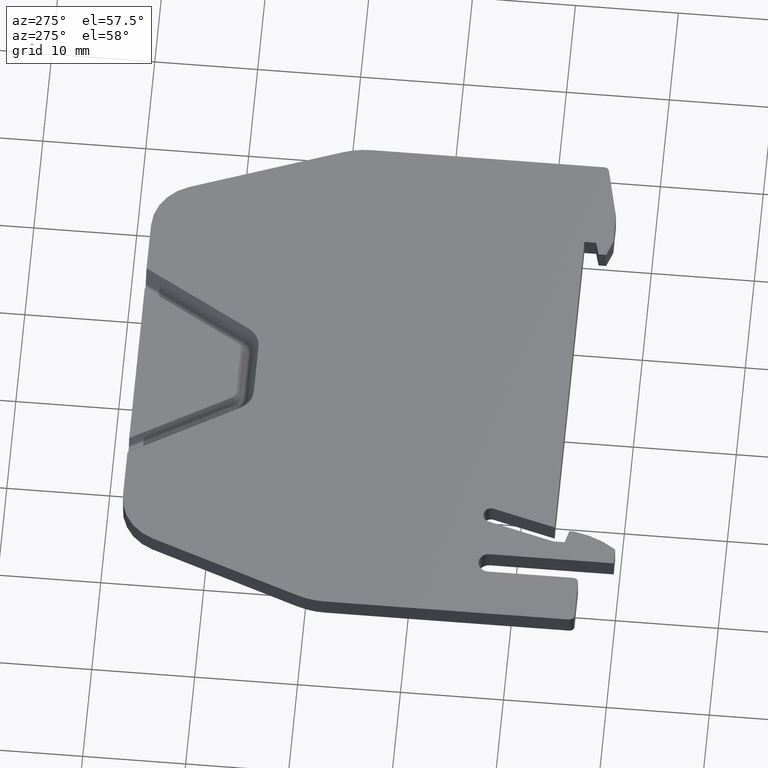
[diagram: clean part render]
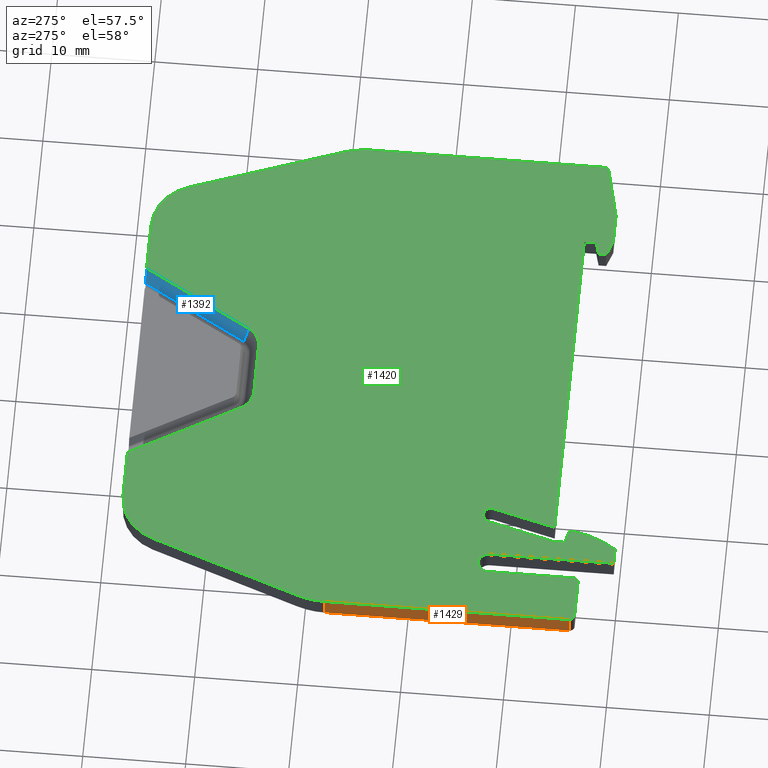
[diagram: same view with three faces highlighted in distinct colors, each labeled with its STEP entity id]
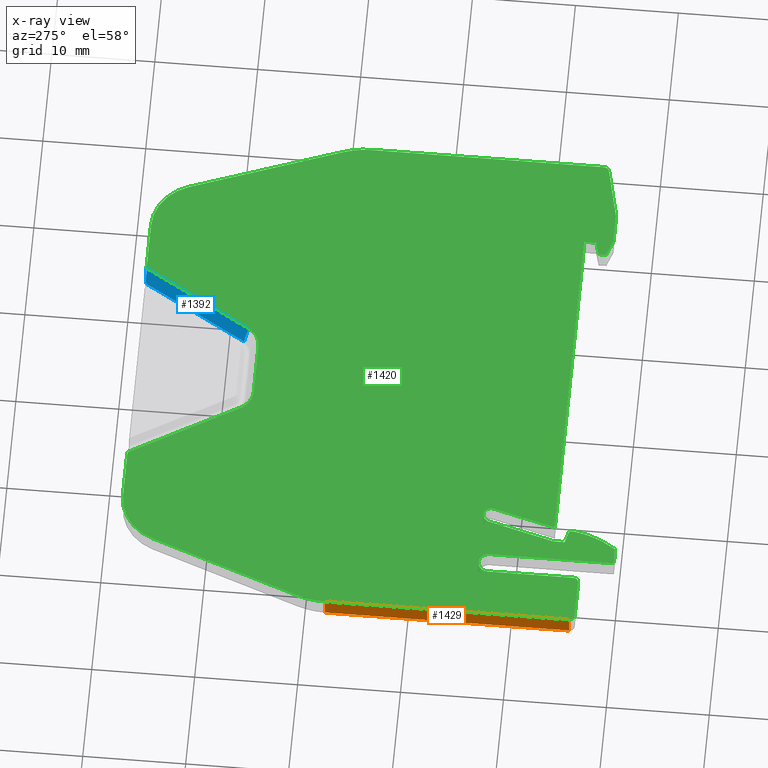
[diagram: x-ray of the same camera — body ghosted, the three highlighted faces saturated]
A machine part, auxiliary view with three faces highlighted in distinct colors.
The next image is the same camera in x-ray (body ghosted, the three faces saturated) — at least one of them is partly hidden behind the body in this view.
Their STEP definitions:

[orange] entity #1429 — the highlighted planar face has unit normal (1, -0, 0).
#15 = VECTOR ( 'NONE', #891, 1000.000000000000000 ) ;
#75 = VECTOR ( 'NONE', #1092, 1000.000000000000000 ) ;
#117 = VECTOR ( 'NONE', #1098, 1000.000000000000000 ) ;
#195 = VECTOR ( 'NONE', #1614, 1000.000000000000000 ) ;
#201 = AXIS2_PLACEMENT_3D ( 'NONE', #1695, #1685, #1679 ) ;
#343 = EDGE_LOOP ( 'NONE', ( #667, #685, #677, #631 ) ) ;
#391 = VERTEX_POINT ( 'NONE', #777 ) ;
#395 = VERTEX_POINT ( 'NONE', #784 ) ;
#396 = VERTEX_POINT ( 'NONE', #775 ) ;
#422 = VERTEX_POINT ( 'NONE', #863 ) ;
#631 = ORIENTED_EDGE ( 'NONE', *, *, #1248, .F. ) ;
#667 = ORIENTED_EDGE ( 'NONE', *, *, #1301, .F. ) ;
#677 = ORIENTED_EDGE ( 'NONE', *, *, #1416, .T. ) ;
#685 = ORIENTED_EDGE ( 'NONE', *, *, #1299, .F. ) ;
#775 = CARTESIAN_POINT ( 'NONE',  ( 1747.800570147140400, 718.0379047496979900, 0.0000000000000000000 ) ) ;
#777 = CARTESIAN_POINT ( 'NONE',  ( 1747.800570147140400, 694.3109218058740500, 0.0000000000000000000 ) ) ;
#784 = CARTESIAN_POINT ( 'NONE',  ( 1747.800570147140400, 718.0379047496981000, 2.000000000000000000 ) ) ;
#863 = CARTESIAN_POINT ( 'NONE',  ( 1747.800570147140200, 694.3109218058740500, 2.000000000000000000 ) ) ;
#891 = DIRECTION ( 'NONE',  ( 0.0000000000000000000, -0.0000000000000000000, -1.000000000000000000 ) ) ;
#893 = LINE ( 'NONE', #921, #15 ) ;
#921 = CARTESIAN_POINT ( 'NONE',  ( 1747.800570147140200, 694.3109218058740500, 2.000000000000000000 ) ) ;
#1056 = LINE ( 'NONE', #1079, #75 ) ;
#1078 = LINE ( 'NONE', #1094, #117 ) ;
#1079 = CARTESIAN_POINT ( 'NONE',  ( 1747.800570147140200, 694.3109218058740500, 2.000000000000000000 ) ) ;
#1092 = DIRECTION ( 'NONE',  ( -9.358316034143051000E-015, -1.000000000000000000, -0.0000000000000000000 ) ) ;
#1094 = CARTESIAN_POINT ( 'NONE',  ( 1747.800570147140400, 718.0379047496979900, 2.000000000000000000 ) ) ;
#1098 = DIRECTION ( 'NONE',  ( -0.0000000000000000000, 0.0000000000000000000, 1.000000000000000000 ) ) ;
#1248 = EDGE_CURVE ( 'NONE', #422, #391, #893, .T. ) ;
#1299 = EDGE_CURVE ( 'NONE', #396, #395, #1078, .T. ) ;
#1301 = EDGE_CURVE ( 'NONE', #395, #422, #1056, .T. ) ;
#1416 = EDGE_CURVE ( 'NONE', #396, #391, #1649, .T. ) ;
#1429 = ADVANCED_FACE ( 'NONE', ( #1674 ), #1694, .F. ) ;
#1614 = DIRECTION ( 'NONE',  ( 0.0000000000000000000, -1.000000000000000000, -0.0000000000000000000 ) ) ;
#1642 = CARTESIAN_POINT ( 'NONE',  ( 1747.800570147140400, 695.4315348762220300, 0.0000000000000000000 ) ) ;
#1649 = LINE ( 'NONE', #1642, #195 ) ;
#1674 = FACE_OUTER_BOUND ( 'NONE', #343, .T. ) ;
#1679 = DIRECTION ( 'NONE',  ( 9.358316034143051000E-015, 1.000000000000000000, 0.0000000000000000000 ) ) ;
#1685 = DIRECTION ( 'NONE',  ( 1.000000000000000000, -9.358316034143051000E-015, 0.0000000000000000000 ) ) ;
#1694 = PLANE ( 'NONE',  #201 ) ;
#1695 = CARTESIAN_POINT ( 'NONE',  ( 1747.800570147140200, 694.3109218058740500, 2.000000000000000000 ) ) ;

[blue] entity #1392 — the highlighted planar face has unit normal (-0.75, 0.433, 0.5).
#9 = VECTOR ( 'NONE', #856, 1000.000000000000100 ) ;
#79 = VECTOR ( 'NONE', #1142, 1000.000000000000000 ) ;
#168 = VECTOR ( 'NONE', #1224, 1000.000000000000200 ) ;
#211 = AXIS2_PLACEMENT_3D ( 'NONE', #1517, #1531, #1525 ) ;
#279 = CARTESIAN_POINT ( 'NONE',  ( 1783.501033155705300, 738.5609287200073800, 0.6500000000000362200 ) ) ;
#302 = EDGE_LOOP ( 'NONE', ( #573, #530, #563, #532 ) ) ;
#320 = VERTEX_POINT ( 'NONE', #279 ) ;
#355 = VERTEX_POINT ( 'NONE', #808 ) ;
#381 = VERTEX_POINT ( 'NONE', #781 ) ;
#416 = VERTEX_POINT ( 'NONE', #849 ) ;
#530 = ORIENTED_EDGE ( 'NONE', *, *, #1240, .T. ) ;
#532 = ORIENTED_EDGE ( 'NONE', *, *, #1350, .F. ) ;
#563 = ORIENTED_EDGE ( 'NONE', *, *, #1316, .T. ) ;
#573 = ORIENTED_EDGE ( 'NONE', *, *, #1313, .T. ) ;
#781 = CARTESIAN_POINT ( 'NONE',  ( 1784.401041641834600, 738.5609287200072700, 2.000000000000095900 ) ) ;
#808 = CARTESIAN_POINT ( 'NONE',  ( 1777.702726905471100, 728.5183464587536300, 0.6499999999528010000 ) ) ;
#821 = LINE ( 'NONE', #843, #9 ) ;
#843 = CARTESIAN_POINT ( 'NONE',  ( 1783.501033155705000, 738.5609287200071500, 0.6500000000000455400 ) ) ;
#849 = CARTESIAN_POINT ( 'NONE',  ( 1778.377720540954000, 728.1286240035231000, 2.000000000009549700 ) ) ;
#856 = DIRECTION ( 'NONE',  ( -0.5000141431500425600, -0.8660172380789708000, -4.249985080949459500E-012 ) ) ;
#1069 = CARTESIAN_POINT ( 'NONE',  ( 1777.702726905471100, 728.5183464587536300, 0.6499999999528010000 ) ) ;
#1071 = CARTESIAN_POINT ( 'NONE',  ( 1778.377720540954000, 728.1286240035231000, 2.000000000009549700 ) ) ;
#1115 = CARTESIAN_POINT ( 'NONE',  ( 1781.778454317207700, 738.5609287200076100, -1.933843894599803100 ) ) ;
#1132 = LINE ( 'NONE', #1115, #79 ) ;
#1142 = DIRECTION ( 'NONE',  ( -0.5547038171766273100, -0.0000000000000000000, -0.8320478803588641200 ) ) ;
#1198 = LINE ( 'NONE', #1223, #168 ) ;
#1223 = CARTESIAN_POINT ( 'NONE',  ( 1784.401041641834800, 738.5609287200073800, 2.000000000000000000 ) ) ;
#1224 = DIRECTION ( 'NONE',  ( -0.5000141431477691500, -0.8660172380802833000, 0.0000000000000000000 ) ) ;
#1240 = EDGE_CURVE ( 'NONE', #320, #355, #821, .T. ) ;
#1313 = EDGE_CURVE ( 'NONE', #381, #320, #1132, .T. ) ;
#1316 = EDGE_CURVE ( 'NONE', #355, #416, #1465, .T. ) ;
#1350 = EDGE_CURVE ( 'NONE', #381, #416, #1198, .T. ) ;
#1392 = ADVANCED_FACE ( 'NONE', ( #1539 ), #1554, .T. ) ;
#1465 = B_SPLINE_CURVE_WITH_KNOTS ( 'NONE', 1,
 ( #1069, #1071 ),
 .UNSPECIFIED., .F., .F.,
 ( 2, 2 ),
 ( 0.0000000000000000000, 1.000000000000000000 ),
 .UNSPECIFIED. ) ;
#1517 = CARTESIAN_POINT ( 'NONE',  ( 1777.752726434024900, 728.4894781287052900, 0.7500000000000000000 ) ) ;
#1525 = DIRECTION ( 'NONE',  ( 0.5547038171766273100, 0.0000000000000000000, 0.8320478803588641200 ) ) ;
#1531 = DIRECTION ( 'NONE',  ( -0.7499929282926921500, 0.4330249502175964000, 0.5000000000000008900 ) ) ;
#1539 = FACE_OUTER_BOUND ( 'NONE', #302, .T. ) ;
#1554 = PLANE ( 'NONE',  #211 ) ;

[green] entity #1420 — the highlighted planar face has unit normal (0, 0, 1).
#5 = VECTOR ( 'NONE', #905, 1000.000000000000100 ) ;
#16 = CIRCLE ( 'NONE', #26, 0.4999999999999449300 ) ;
#25 = VECTOR ( 'NONE', #900, 1000.000000000000000 ) ;
#26 = AXIS2_PLACEMENT_3D ( 'NONE', #1004, #969, #987 ) ;
#33 = CIRCLE ( 'NONE', #66, 0.4999999999999449300 ) ;
#36 = CIRCLE ( 'NONE', #50, 2.288675134643147800 ) ;
#40 = CIRCLE ( 'NONE', #41, 0.4999999999999449300 ) ;
#41 = AXIS2_PLACEMENT_3D ( 'NONE', #1043, #1048, #1032 ) ;
#42 = VECTOR ( 'NONE', #1050, 1000.000000000000000 ) ;
#44 = VECTOR ( 'NONE', #875, 1000.000000000000000 ) ;
#50 = AXIS2_PLACEMENT_3D ( 'NONE', #928, #942, #926 ) ;
#52 = VECTOR ( 'NONE', #1013, 1000.000000000000200 ) ;
#66 = AXIS2_PLACEMENT_3D ( 'NONE', #943, #958, #927 ) ;
#71 = VECTOR ( 'NONE', #1154, 1000.000000000000000 ) ;
#72 = CIRCLE ( 'NONE', #128, 2.288675134607176500 ) ;
#75 = VECTOR ( 'NONE', #1092, 1000.000000000000000 ) ;
#76 = VECTOR ( 'NONE', #1140, 1000.000000000000000 ) ;
#77 = VECTOR ( 'NONE', #1100, 1000.000000000000100 ) ;
#78 = VECTOR ( 'NONE', #1187, 1000.000000000000000 ) ;
#83 = VECTOR ( 'NONE', #1112, 1000.000000000000000 ) ;
#84 = CIRCLE ( 'NONE', #92, 8.000000000000007100 ) ;
#89 = VECTOR ( 'NONE', #1193, 1000.000000000000100 ) ;
#92 = AXIS2_PLACEMENT_3D ( 'NONE', #1196, #1221, #1195 ) ;
#93 = VECTOR ( 'NONE', #1064, 1000.000000000000000 ) ;
#96 = AXIS2_PLACEMENT_3D ( 'NONE', #1169, #1189, #1177 ) ;
#101 = CIRCLE ( 'NONE', #102, 9.500000000000063900 ) ;
#102 = AXIS2_PLACEMENT_3D ( 'NONE', #1075, #1086, #1095 ) ;
#105 = AXIS2_PLACEMENT_3D ( 'NONE', #1096, #1088, #1097 ) ;
#106 = CIRCLE ( 'NONE', #105, 0.6999999999999229100 ) ;
#109 = CIRCLE ( 'NONE', #113, 0.8000000000001339400 ) ;
#113 = AXIS2_PLACEMENT_3D ( 'NONE', #1134, #1137, #1139 ) ;
#114 = AXIS2_PLACEMENT_3D ( 'NONE', #1104, #1107, #1108 ) ;
#122 = CIRCLE ( 'NONE', #114, 0.9999999999998898700 ) ;
#123 = VECTOR ( 'NONE', #1012, 1000.000000000000200 ) ;
#126 = CIRCLE ( 'NONE', #96, 8.000000000000007100 ) ;
#128 = AXIS2_PLACEMENT_3D ( 'NONE', #1106, #1120, #1114 ) ;
#150 = VECTOR ( 'NONE', #1470, 1000.000000000000000 ) ;
#160 = VECTOR ( 'NONE', #1851, 1000.000000000000000 ) ;
#168 = VECTOR ( 'NONE', #1224, 1000.000000000000200 ) ;
#172 = VECTOR ( 'NONE', #1215, 1000.000000000000000 ) ;
#183 = VECTOR ( 'NONE', #1543, 1000.000000000000000 ) ;
#186 = VECTOR ( 'NONE', #1850, 1000.000000000000000 ) ;
#193 = CIRCLE ( 'NONE', #247, 5.000000000000115500 ) ;
#194 = AXIS2_PLACEMENT_3D ( 'NONE', #1580, #1559, #1560 ) ;
#205 = VECTOR ( 'NONE', #1635, 1000.000000000000000 ) ;
#219 = VECTOR ( 'NONE', #1577, 1000.000000000000000 ) ;
#221 = VECTOR ( 'NONE', #1576, 1000.000000000000000 ) ;
#223 = AXIS2_PLACEMENT_3D ( 'NONE', #1634, #1631, #1621 ) ;
#232 = CIRCLE ( 'NONE', #194, 5.000000000001003600 ) ;
#237 = VECTOR ( 'NONE', #1571, 1000.000000000000000 ) ;
#239 = VECTOR ( 'NONE', #1595, 1000.000000000000000 ) ;
#244 = VECTOR ( 'NONE', #1593, 1000.000000000000000 ) ;
#247 = AXIS2_PLACEMENT_3D ( 'NONE', #1567, #1574, #1569 ) ;
#297 = EDGE_LOOP ( 'NONE', ( #602, #579, #627, #568, #576, #610, #597, #590, #634, #578, #603, #575, #601, #594, #566, #588, #606, #661, #595, #572, #596, #613, #567, #565, #599, #584, #607, #582, #589, #591, #616, #592, #608, #671, #672, #674, #624, #632, #660 ) ) ;
#328 = VERTEX_POINT ( 'NONE', #495 ) ;
#365 = VERTEX_POINT ( 'NONE', #788 ) ;
#368 = VERTEX_POINT ( 'NONE', #766 ) ;
#374 = VERTEX_POINT ( 'NONE', #792 ) ;
#375 = VERTEX_POINT ( 'NONE', #763 ) ;
#377 = VERTEX_POINT ( 'NONE', #815 ) ;
#378 = VERTEX_POINT ( 'NONE', #804 ) ;
#381 = VERTEX_POINT ( 'NONE', #781 ) ;
#382 = VERTEX_POINT ( 'NONE', #770 ) ;
#383 = VERTEX_POINT ( 'NONE', #800 ) ;
#384 = VERTEX_POINT ( 'NONE', #771 ) ;
#385 = VERTEX_POINT ( 'NONE', #793 ) ;
#388 = VERTEX_POINT ( 'NONE', #812 ) ;
#389 = VERTEX_POINT ( 'NONE', #782 ) ;
#392 = VERTEX_POINT ( 'NONE', #758 ) ;
#393 = VERTEX_POINT ( 'NONE', #783 ) ;
#395 = VERTEX_POINT ( 'NONE', #784 ) ;
#397 = VERTEX_POINT ( 'NONE', #778 ) ;
#400 = VERTEX_POINT ( 'NONE', #757 ) ;
#406 = VERTEX_POINT ( 'NONE', #826 ) ;
#407 = VERTEX_POINT ( 'NONE', #833 ) ;
#409 = VERTEX_POINT ( 'NONE', #845 ) ;
#410 = VERTEX_POINT ( 'NONE', #853 ) ;
#412 = VERTEX_POINT ( 'NONE', #867 ) ;
#413 = VERTEX_POINT ( 'NONE', #858 ) ;
#416 = VERTEX_POINT ( 'NONE', #849 ) ;
#419 = VERTEX_POINT ( 'NONE', #847 ) ;
#421 = VERTEX_POINT ( 'NONE', #862 ) ;
#422 = VERTEX_POINT ( 'NONE', #863 ) ;
#423 = VERTEX_POINT ( 'NONE', #869 ) ;
#425 = VERTEX_POINT ( 'NONE', #864 ) ;
#426 = VERTEX_POINT ( 'NONE', #824 ) ;
#427 = VERTEX_POINT ( 'NONE', #839 ) ;
#428 = VERTEX_POINT ( 'NONE', #870 ) ;
#429 = VERTEX_POINT ( 'NONE', #873 ) ;
#433 = VERTEX_POINT ( 'NONE', #830 ) ;
#434 = VERTEX_POINT ( 'NONE', #850 ) ;
#487 = VERTEX_POINT ( 'NONE', #832 ) ;
#495 = CARTESIAN_POINT ( 'NONE',  ( 1757.900570147204900, 695.1625878557445000, 2.000000000000000000 ) ) ;
#497 = VERTEX_POINT ( 'NONE', #831 ) ;
#565 = ORIENTED_EDGE ( 'NONE', *, *, #1283, .T. ) ;
#566 = ORIENTED_EDGE ( 'NONE', *, *, #1290, .T. ) ;
#567 = ORIENTED_EDGE ( 'NONE', *, *, #1405, .T. ) ;
#568 = ORIENTED_EDGE ( 'NONE', *, *, #1307, .T. ) ;
#572 = ORIENTED_EDGE ( 'NONE', *, *, #1314, .T. ) ;
#575 = ORIENTED_EDGE ( 'NONE', *, *, #1341, .T. ) ;
#576 = ORIENTED_EDGE ( 'NONE', *, *, #1350, .T. ) ;
#578 = ORIENTED_EDGE ( 'NONE', *, *, #1386, .T. ) ;
#579 = ORIENTED_EDGE ( 'NONE', *, *, #1415, .T. ) ;
#582 = ORIENTED_EDGE ( 'NONE', *, *, #1245, .T. ) ;
#584 = ORIENTED_EDGE ( 'NONE', *, *, #1399, .T. ) ;
#588 = ORIENTED_EDGE ( 'NONE', *, *, #1329, .T. ) ;
#589 = ORIENTED_EDGE ( 'NONE', *, *, #1306, .T. ) ;
#590 = ORIENTED_EDGE ( 'NONE', *, *, #1321, .T. ) ;
#591 = ORIENTED_EDGE ( 'NONE', *, *, #1359, .T. ) ;
#592 = ORIENTED_EDGE ( 'NONE', *, *, #1361, .T. ) ;
#594 = ORIENTED_EDGE ( 'NONE', *, *, #1301, .T. ) ;
#595 = ORIENTED_EDGE ( 'NONE', *, *, #1324, .T. ) ;
#596 = ORIENTED_EDGE ( 'NONE', *, *, #1249, .T. ) ;
#597 = ORIENTED_EDGE ( 'NONE', *, *, #1317, .T. ) ;
#599 = ORIENTED_EDGE ( 'NONE', *, *, #1381, .T. ) ;
#601 = ORIENTED_EDGE ( 'NONE', *, *, #1342, .F. ) ;
#602 = ORIENTED_EDGE ( 'NONE', *, *, #1328, .F. ) ;
#603 = ORIENTED_EDGE ( 'NONE', *, *, #1400, .F. ) ;
#606 = ORIENTED_EDGE ( 'NONE', *, *, #1277, .T. ) ;
#607 = ORIENTED_EDGE ( 'NONE', *, *, #1323, .T. ) ;
#608 = ORIENTED_EDGE ( 'NONE', *, *, #1255, .T. ) ;
#610 = ORIENTED_EDGE ( 'NONE', *, *, #1262, .T. ) ;
#613 = ORIENTED_EDGE ( 'NONE', *, *, #1298, .F. ) ;
#616 = ORIENTED_EDGE ( 'NONE', *, *, #1407, .T. ) ;
#624 = ORIENTED_EDGE ( 'NONE', *, *, #1401, .T. ) ;
#627 = ORIENTED_EDGE ( 'NONE', *, *, #1406, .F. ) ;
#632 = ORIENTED_EDGE ( 'NONE', *, *, #1263, .T. ) ;
#634 = ORIENTED_EDGE ( 'NONE', *, *, #1295, .T. ) ;
#660 = ORIENTED_EDGE ( 'NONE', *, *, #1335, .T. ) ;
#661 = ORIENTED_EDGE ( 'NONE', *, *, #1408, .T. ) ;
#671 = ORIENTED_EDGE ( 'NONE', *, *, #1292, .T. ) ;
#672 = ORIENTED_EDGE ( 'NONE', *, *, #1303, .T. ) ;
#674 = ORIENTED_EDGE ( 'NONE', *, *, #1344, .T. ) ;
#757 = CARTESIAN_POINT ( 'NONE',  ( 1748.283034491644900, 720.7740804875423900, 2.000000000000000000 ) ) ;
#758 = CARTESIAN_POINT ( 'NONE',  ( 1752.600570147200000, 702.6109218058740000, 2.000000000000000000 ) ) ;
#763 = CARTESIAN_POINT ( 'NONE',  ( 1752.100570147200600, 693.8109218058742700, 2.000000000000000000 ) ) ;
#766 = CARTESIAN_POINT ( 'NONE',  ( 1789.800570147180000, 695.1089980172039300, 2.000000000000000000 ) ) ;
#770 = CARTESIAN_POINT ( 'NONE',  ( 1759.297131320696700, 703.5836624669302600, 2.000000000000000000 ) ) ;
#771 = CARTESIAN_POINT ( 'NONE',  ( 1756.600570147214700, 695.5109218059020600, 2.000000000000000000 ) ) ;
#778 = CARTESIAN_POINT ( 'NONE',  ( 1758.257985081626900, 738.5609287200089700, 2.000000000000000000 ) ) ;
#781 = CARTESIAN_POINT ( 'NONE',  ( 1784.401041641834600, 738.5609287200072700, 2.000000000000095900 ) ) ;
#782 = CARTESIAN_POINT ( 'NONE',  ( 1799.800570147184800, 718.0379047496785500, 2.000000000000000000 ) ) ;
#783 = CARTESIAN_POINT ( 'NONE',  ( 1748.300570147155200, 693.8109218058742700, 2.000000000000000000 ) ) ;
#784 = CARTESIAN_POINT ( 'NONE',  ( 1747.800570147140400, 718.0379047496981000, 2.000000000000000000 ) ) ;
#788 = CARTESIAN_POINT ( 'NONE',  ( 1789.800570147180000, 694.3752307541094500, 2.000000000000000000 ) ) ;
#792 = CARTESIAN_POINT ( 'NONE',  ( 1791.100570147180000, 696.6109218058999200, 2.000000000000000000 ) ) ;
#793 = CARTESIAN_POINT ( 'NONE',  ( 1771.205443564265400, 726.9843188053122300, 1.999999999978740600 ) ) ;
#800 = CARTESIAN_POINT ( 'NONE',  ( 1794.041612712694600, 735.2710385561561000, 2.000000000000000000 ) ) ;
#804 = CARTESIAN_POINT ( 'NONE',  ( 1769.223411445339700, 728.1286240035239000, 2.000000000005205200 ) ) ;
#812 = CARTESIAN_POINT ( 'NONE',  ( 1757.900570147204500, 694.7109218059093800, 2.000000000000000000 ) ) ;
#815 = CARTESIAN_POINT ( 'NONE',  ( 1799.318105802679400, 720.7740804875237500, 2.000000000000000000 ) ) ;
#824 = CARTESIAN_POINT ( 'NONE',  ( 1791.350996240119900, 693.8109218058500600, 2.000000000000000000 ) ) ;
#826 = CARTESIAN_POINT ( 'NONE',  ( 1799.800570147184800, 695.4315348762220300, 2.000000000000000000 ) ) ;
#830 = CARTESIAN_POINT ( 'NONE',  ( 1754.600570147200000, 702.6109218058740000, 2.000000000000000000 ) ) ;
#831 = CARTESIAN_POINT ( 'NONE',  ( 1758.200570147210800, 696.6109218058998100, 2.000000000000000000 ) ) ;
#832 = CARTESIAN_POINT ( 'NONE',  ( 1794.300570147180200, 693.8109218058500600, 2.000000000000000000 ) ) ;
#833 = CARTESIAN_POINT ( 'NONE',  ( 1753.559527581626500, 735.2710385561646300, 2.000000000000000000 ) ) ;
#839 = CARTESIAN_POINT ( 'NONE',  ( 1759.341062904287800, 703.5718910345842700, 2.000000000000000000 ) ) ;
#845 = CARTESIAN_POINT ( 'NONE',  ( 1752.600570147200000, 694.3109218058740500, 2.000000000000000000 ) ) ;
#847 = CARTESIAN_POINT ( 'NONE',  ( 1799.408789954153200, 694.9433868726627000, 2.000000000000000000 ) ) ;
#849 = CARTESIAN_POINT ( 'NONE',  ( 1778.377720540954000, 728.1286240035231000, 2.000000000009549700 ) ) ;
#850 = CARTESIAN_POINT ( 'NONE',  ( 1759.836037651119600, 702.7145696246100200, 2.000000000000000000 ) ) ;
#853 = CARTESIAN_POINT ( 'NONE',  ( 1754.600570147200000, 690.5609218058743900, 2.000000000000000000 ) ) ;
#858 = CARTESIAN_POINT ( 'NONE',  ( 1791.100570147180000, 695.4573319673645500, 2.000000000000000000 ) ) ;
#862 = CARTESIAN_POINT ( 'NONE',  ( 1789.343152928015100, 738.5609287200070400, 2.000000000000000000 ) ) ;
#863 = CARTESIAN_POINT ( 'NONE',  ( 1747.800570147140200, 694.3109218058740500, 2.000000000000000000 ) ) ;
#864 = CARTESIAN_POINT ( 'NONE',  ( 1763.200090344441600, 738.5609287200076100, 2.000000000000742500 ) ) ;
#867 = CARTESIAN_POINT ( 'NONE',  ( 1758.317335423584400, 703.0179770419805400, 2.000000000000000000 ) ) ;
#869 = CARTESIAN_POINT ( 'NONE',  ( 1756.600570147214700, 696.6109218059001500, 2.000000000000000000 ) ) ;
#870 = CARTESIAN_POINT ( 'NONE',  ( 1756.205729682429800, 690.5609218058671100, 2.000000000000000000 ) ) ;
#873 = CARTESIAN_POINT ( 'NONE',  ( 1776.395688422009900, 726.9843188052940400, 2.000000000005100400 ) ) ;
#875 = DIRECTION ( 'NONE',  ( 1.000000000000000000, -4.465094679110480000E-012, 0.0000000000000000000 ) ) ;
#889 = LINE ( 'NONE', #899, #25 ) ;
#890 = CARTESIAN_POINT ( 'NONE',  ( 1759.341062904290100, 703.5718910345839300, 2.000000000000000000 ) ) ;
#895 = CARTESIAN_POINT ( 'NONE',  ( 1756.241626494069600, 690.5609218058670000, 2.000000000000000000 ) ) ;
#899 = CARTESIAN_POINT ( 'NONE',  ( 1791.100570147180000, 695.4573319673645500, 2.000000000000000000 ) ) ;
#900 = DIRECTION ( 'NONE',  ( -0.9659258262890366700, -0.2588190451026387600, 0.0000000000000000000 ) ) ;
#905 = DIRECTION ( 'NONE',  ( 0.9659258262889628400, -0.2588190451029141500, -0.0000000000000000000 ) ) ;
#906 = LINE ( 'NONE', #890, #5 ) ;
#915 = LINE ( 'NONE', #895, #44 ) ;
#926 = DIRECTION ( 'NONE',  ( 1.000000000000000000, 0.0000000000000000000, 0.0000000000000000000 ) ) ;
#927 = DIRECTION ( 'NONE',  ( -1.000000000000000000, 2.220446049250557700E-013, 0.0000000000000000000 ) ) ;
#928 = CARTESIAN_POINT ( 'NONE',  ( 1776.395688422009900, 729.2729939398921000, 2.000000000009549700 ) ) ;
#942 = DIRECTION ( 'NONE',  ( -0.0000000000000000000, 0.0000000000000000000, -1.000000000000000000 ) ) ;
#943 = CARTESIAN_POINT ( 'NONE',  ( 1799.300570147185500, 695.4315348762220300, 2.000000000000000000 ) ) ;
#958 = DIRECTION ( 'NONE',  ( -0.0000000000000000000, -0.0000000000000000000, 1.000000000000000000 ) ) ;
#969 = DIRECTION ( 'NONE',  ( -0.0000000000000000000, -0.0000000000000000000, 1.000000000000000000 ) ) ;
#987 = DIRECTION ( 'NONE',  ( -1.000000000000000000, 0.0000000000000000000, 0.0000000000000000000 ) ) ;
#990 = LINE ( 'NONE', #991, #52 ) ;
#991 = CARTESIAN_POINT ( 'NONE',  ( 1756.600570147215000, 695.5109218059022900, 2.000000000000000000 ) ) ;
#1004 = CARTESIAN_POINT ( 'NONE',  ( 1752.100570147200600, 694.3109218058740500, 2.000000000000000000 ) ) ;
#1012 = DIRECTION ( 'NONE',  ( -0.5000141431479280300, 0.8660172380801917100, 0.0000000000000000000 ) ) ;
#1013 = DIRECTION ( 'NONE',  ( -0.9659258262891666800, 0.2588190451021530300, -0.0000000000000000000 ) ) ;
#1018 = CARTESIAN_POINT ( 'NONE',  ( 1789.800570147180000, 695.1089980172040400, 2.000000000000000000 ) ) ;
#1022 = CARTESIAN_POINT ( 'NONE',  ( 1769.223411445339700, 728.1286240035240100, 2.000000000000000000 ) ) ;
#1031 = LINE ( 'NONE', #1018, #42 ) ;
#1032 = DIRECTION ( 'NONE',  ( -1.000000000000000000, 0.0000000000000000000, 0.0000000000000000000 ) ) ;
#1040 = LINE ( 'NONE', #1022, #123 ) ;
#1043 = CARTESIAN_POINT ( 'NONE',  ( 1748.300570147140200, 694.3109218058740500, 2.000000000000000000 ) ) ;
#1048 = DIRECTION ( 'NONE',  ( -0.0000000000000000000, -0.0000000000000000000, 1.000000000000000000 ) ) ;
#1050 = DIRECTION ( 'NONE',  ( -0.0000000000000000000, -1.000000000000000000, -0.0000000000000000000 ) ) ;
#1056 = LINE ( 'NONE', #1079, #75 ) ;
#1064 = DIRECTION ( 'NONE',  ( -1.000000000000000000, -0.0000000000000000000, -0.0000000000000000000 ) ) ;
#1074 = CARTESIAN_POINT ( 'NONE',  ( 1789.800570147180000, 694.3752307541092300, 2.000000000000000000 ) ) ;
#1075 = CARTESIAN_POINT ( 'NONE',  ( 1748.506597467820000, 696.1262935941630300, 2.000000000000000000 ) ) ;
#1079 = CARTESIAN_POINT ( 'NONE',  ( 1747.800570147140200, 694.3109218058740500, 2.000000000000000000 ) ) ;
#1082 = CARTESIAN_POINT ( 'NONE',  ( 1789.343152928030100, 738.5609287200070400, 2.000000000000000000 ) ) ;
#1083 = LINE ( 'NONE', #1082, #93 ) ;
#1085 = LINE ( 'NONE', #1074, #77 ) ;
#1086 = DIRECTION ( 'NONE',  ( 0.0000000000000000000, 0.0000000000000000000, -1.000000000000000000 ) ) ;
#1088 = DIRECTION ( 'NONE',  ( 0.0000000000000000000, 0.0000000000000000000, -1.000000000000000000 ) ) ;
#1092 = DIRECTION ( 'NONE',  ( -9.358316034143051000E-015, -1.000000000000000000, -0.0000000000000000000 ) ) ;
#1095 = DIRECTION ( 'NONE',  ( -1.000000000000000000, 0.0000000000000000000, 0.0000000000000000000 ) ) ;
#1096 = CARTESIAN_POINT ( 'NONE',  ( 1759.159889572715000, 702.8957429561820600, 2.000000000000000000 ) ) ;
#1097 = DIRECTION ( 'NONE',  ( -1.000000000000000000, 0.0000000000000000000, 0.0000000000000000000 ) ) ;
#1100 = DIRECTION ( 'NONE',  ( 0.9396926207860235600, -0.3420201433253520800, 0.0000000000000000000 ) ) ;
#1104 = CARTESIAN_POINT ( 'NONE',  ( 1753.600570147200000, 702.6109218058740000, 2.000000000000000000 ) ) ;
#1106 = CARTESIAN_POINT ( 'NONE',  ( 1771.205443564265100, 729.2729939398921000, 2.000000000009549700 ) ) ;
#1107 = DIRECTION ( 'NONE',  ( 0.0000000000000000000, 0.0000000000000000000, -1.000000000000000000 ) ) ;
#1108 = DIRECTION ( 'NONE',  ( -1.000000000000000000, 0.0000000000000000000, 0.0000000000000000000 ) ) ;
#1112 = DIRECTION ( 'NONE',  ( -0.0000000000000000000, -1.000000000000000000, -0.0000000000000000000 ) ) ;
#1114 = DIRECTION ( 'NONE',  ( 1.000000000000000000, 0.0000000000000000000, 0.0000000000000000000 ) ) ;
#1117 = LINE ( 'NONE', #1131, #76 ) ;
#1119 = CARTESIAN_POINT ( 'NONE',  ( 1754.600570147200000, 702.6109218058740000, 2.000000000000000000 ) ) ;
#1120 = DIRECTION ( 'NONE',  ( -0.0000000000000000000, -0.0000000000000000000, -1.000000000000000000 ) ) ;
#1131 = CARTESIAN_POINT ( 'NONE',  ( 1799.300570147185500, 726.9843188052948300, 2.000000000000000000 ) ) ;
#1134 = CARTESIAN_POINT ( 'NONE',  ( 1759.090076084614800, 702.8109218058989400, 2.000000000000000000 ) ) ;
#1135 = LINE ( 'NONE', #1119, #83 ) ;
#1137 = DIRECTION ( 'NONE',  ( 0.0000000000000000000, 0.0000000000000000000, -1.000000000000000000 ) ) ;
#1139 = DIRECTION ( 'NONE',  ( -1.000000000000000000, 0.0000000000000000000, 0.0000000000000000000 ) ) ;
#1140 = DIRECTION ( 'NONE',  ( -1.000000000000000000, -0.0000000000000000000, 0.0000000000000000000 ) ) ;
#1147 = CARTESIAN_POINT ( 'NONE',  ( 1748.300570147200000, 693.8109218058742700, 2.000000000000000000 ) ) ;
#1151 = LINE ( 'NONE', #1176, #71 ) ;
#1154 = DIRECTION ( 'NONE',  ( 0.0000000000000000000, 1.000000000000000000, -0.0000000000000000000 ) ) ;
#1156 = LINE ( 'NONE', #1166, #89 ) ;
#1166 = CARTESIAN_POINT ( 'NONE',  ( 1748.283034491644900, 720.7740804875429600, 2.000000000000000000 ) ) ;
#1169 = CARTESIAN_POINT ( 'NONE',  ( 1791.800570147184800, 718.0379047496790000, 2.000000000000000000 ) ) ;
#1176 = CARTESIAN_POINT ( 'NONE',  ( 1799.800570147184800, 695.4315348762220300, 2.000000000000000000 ) ) ;
#1177 = DIRECTION ( 'NONE',  ( -1.000000000000000000, 0.0000000000000000000, 0.0000000000000000000 ) ) ;
#1178 = LINE ( 'NONE', #1147, #78 ) ;
#1187 = DIRECTION ( 'NONE',  ( 1.000000000000000000, 0.0000000000000000000, -0.0000000000000000000 ) ) ;
#1189 = DIRECTION ( 'NONE',  ( 0.0000000000000000000, 0.0000000000000000000, -1.000000000000000000 ) ) ;
#1193 = DIRECTION ( 'NONE',  ( -0.3420219672305173100, -0.9396919569368288300, -0.0000000000000000000 ) ) ;
#1195 = DIRECTION ( 'NONE',  ( -1.000000000000000000, 0.0000000000000000000, 0.0000000000000000000 ) ) ;
#1196 = CARTESIAN_POINT ( 'NONE',  ( 1755.800570147140000, 718.0379047496979900, 2.000000000000000000 ) ) ;
#1198 = LINE ( 'NONE', #1223, #168 ) ;
#1204 = CARTESIAN_POINT ( 'NONE',  ( 1791.350996240119900, 693.8109218058500600, 2.000000000000000000 ) ) ;
#1215 = DIRECTION ( 'NONE',  ( 1.000000000000000000, 0.0000000000000000000, -0.0000000000000000000 ) ) ;
#1216 = LINE ( 'NONE', #1204, #172 ) ;
#1221 = DIRECTION ( 'NONE',  ( 0.0000000000000000000, 0.0000000000000000000, -1.000000000000000000 ) ) ;
#1223 = CARTESIAN_POINT ( 'NONE',  ( 1784.401041641834800, 738.5609287200073800, 2.000000000000000000 ) ) ;
#1224 = DIRECTION ( 'NONE',  ( -0.5000141431477691500, -0.8660172380802833000, 0.0000000000000000000 ) ) ;
#1245 = EDGE_CURVE ( 'NONE', #382, #427, #906, .T. ) ;
#1249 = EDGE_CURVE ( 'NONE', #410, #428, #915, .T. ) ;
#1255 = EDGE_CURVE ( 'NONE', #413, #368, #889, .T. ) ;
#1262 = EDGE_CURVE ( 'NONE', #416, #429, #36, .T. ) ;
#1263 = EDGE_CURVE ( 'NONE', #419, #406, #33, .T. ) ;
#1277 = EDGE_CURVE ( 'NONE', #375, #409, #16, .T. ) ;
#1283 = EDGE_CURVE ( 'NONE', #328, #384, #990, .T. ) ;
#1290 = EDGE_CURVE ( 'NONE', #422, #393, #40, .T. ) ;
#1292 = EDGE_CURVE ( 'NONE', #368, #365, #1031, .T. ) ;
#1295 = EDGE_CURVE ( 'NONE', #378, #425, #1040, .T. ) ;
#1298 = EDGE_CURVE ( 'NONE', #388, #428, #101, .T. ) ;
#1301 = EDGE_CURVE ( 'NONE', #395, #422, #1056, .T. ) ;
#1303 = EDGE_CURVE ( 'NONE', #365, #426, #1085, .T. ) ;
#1306 = EDGE_CURVE ( 'NONE', #427, #434, #106, .T. ) ;
#1307 = EDGE_CURVE ( 'NONE', #421, #381, #1083, .T. ) ;
#1314 = EDGE_CURVE ( 'NONE', #433, #410, #1135, .T. ) ;
#1317 = EDGE_CURVE ( 'NONE', #429, #385, #1117, .T. ) ;
#1321 = EDGE_CURVE ( 'NONE', #385, #378, #72, .T. ) ;
#1323 = EDGE_CURVE ( 'NONE', #412, #382, #109, .T. ) ;
#1324 = EDGE_CURVE ( 'NONE', #392, #433, #122, .T. ) ;
#1328 = EDGE_CURVE ( 'NONE', #377, #389, #126, .T. ) ;
#1329 = EDGE_CURVE ( 'NONE', #393, #375, #1178, .T. ) ;
#1335 = EDGE_CURVE ( 'NONE', #406, #389, #1151, .T. ) ;
#1341 = EDGE_CURVE ( 'NONE', #407, #400, #1156, .T. ) ;
#1342 = EDGE_CURVE ( 'NONE', #395, #400, #84, .T. ) ;
#1344 = EDGE_CURVE ( 'NONE', #426, #487, #1216, .T. ) ;
#1350 = EDGE_CURVE ( 'NONE', #381, #416, #1198, .T. ) ;
#1359 = EDGE_CURVE ( 'NONE', #434, #497, #1874, .T. ) ;
#1361 = EDGE_CURVE ( 'NONE', #374, #413, #1867, .T. ) ;
#1381 = EDGE_CURVE ( 'NONE', #384, #423, #1477, .T. ) ;
#1386 = EDGE_CURVE ( 'NONE', #425, #397, #1492, .T. ) ;
#1399 = EDGE_CURVE ( 'NONE', #423, #412, #1605, .T. ) ;
#1400 = EDGE_CURVE ( 'NONE', #407, #397, #232, .T. ) ;
#1401 = EDGE_CURVE ( 'NONE', #487, #419, #1592, .T. ) ;
#1405 = EDGE_CURVE ( 'NONE', #388, #328, #1581, .T. ) ;
#1406 = EDGE_CURVE ( 'NONE', #421, #383, #193, .T. ) ;
#1407 = EDGE_CURVE ( 'NONE', #497, #374, #1582, .T. ) ;
#1408 = EDGE_CURVE ( 'NONE', #409, #392, #1597, .T. ) ;
#1415 = EDGE_CURVE ( 'NONE', #377, #383, #1648, .T. ) ;
#1420 = ADVANCED_FACE ( 'NONE', ( #1610 ), #1645, .T. ) ;
#1470 = DIRECTION ( 'NONE',  ( -0.0000000000000000000, 1.000000000000000000, 0.0000000000000000000 ) ) ;
#1477 = LINE ( 'NONE', #1481, #150 ) ;
#1481 = CARTESIAN_POINT ( 'NONE',  ( 1756.600570147214700, 695.4315348762220300, 2.000000000000000000 ) ) ;
#1492 = LINE ( 'NONE', #1529, #183 ) ;
#1529 = CARTESIAN_POINT ( 'NONE',  ( 1789.343152928030100, 738.5609287200070400, 2.000000000000560000 ) ) ;
#1543 = DIRECTION ( 'NONE',  ( -1.000000000000000000, -0.0000000000000000000, -0.0000000000000000000 ) ) ;
#1559 = DIRECTION ( 'NONE',  ( 0.0000000000000000000, 0.0000000000000000000, -1.000000000000000000 ) ) ;
#1560 = DIRECTION ( 'NONE',  ( -1.000000000000000000, 0.0000000000000000000, 0.0000000000000000000 ) ) ;
#1566 = CARTESIAN_POINT ( 'NONE',  ( 1757.900570147204500, 695.4315348762220300, 2.000000000000000000 ) ) ;
#1567 = CARTESIAN_POINT ( 'NONE',  ( 1789.343152928009900, 733.5609287200072700, 2.000000000000000000 ) ) ;
#1569 = DIRECTION ( 'NONE',  ( -1.000000000000000000, 0.0000000000000000000, 0.0000000000000000000 ) ) ;
#1571 = DIRECTION ( 'NONE',  ( 0.2588190451025185200, 0.9659258262890689800, -0.0000000000000000000 ) ) ;
#1572 = CARTESIAN_POINT ( 'NONE',  ( 1794.300570147180700, 693.8109218058500600, 2.000000000000000000 ) ) ;
#1574 = DIRECTION ( 'NONE',  ( 0.0000000000000000000, 0.0000000000000000000, -1.000000000000000000 ) ) ;
#1576 = DIRECTION ( 'NONE',  ( 0.0000000000000000000, 1.000000000000000000, -0.0000000000000000000 ) ) ;
#1577 = DIRECTION ( 'NONE',  ( 1.000000000000000000, 0.0000000000000000000, -0.0000000000000000000 ) ) ;
#1580 = CARTESIAN_POINT ( 'NONE',  ( 1758.257987366310500, 733.5609287200122700, 2.000000000000000000 ) ) ;
#1581 = LINE ( 'NONE', #1566, #244 ) ;
#1582 = LINE ( 'NONE', #1600, #219 ) ;
#1592 = LINE ( 'NONE', #1572, #239 ) ;
#1593 = DIRECTION ( 'NONE',  ( -0.0000000000000000000, 1.000000000000000000, 0.0000000000000000000 ) ) ;
#1595 = DIRECTION ( 'NONE',  ( 0.9762960071199376900, 0.2164396139380834700, -0.0000000000000000000 ) ) ;
#1597 = LINE ( 'NONE', #1603, #221 ) ;
#1600 = CARTESIAN_POINT ( 'NONE',  ( 1758.200570147210100, 696.6109218059000300, 2.000000000000000000 ) ) ;
#1602 = CARTESIAN_POINT ( 'NONE',  ( 1756.600570147215000, 696.6109218059000300, 2.000000000000000000 ) ) ;
#1603 = CARTESIAN_POINT ( 'NONE',  ( 1752.600570147200000, 694.3109218058740500, 2.000000000000000000 ) ) ;
#1605 = LINE ( 'NONE', #1602, #237 ) ;
#1610 = FACE_OUTER_BOUND ( 'NONE', #297, .T. ) ;
#1621 = DIRECTION ( 'NONE',  ( 1.000000000000000000, 0.0000000000000000000, -0.0000000000000000000 ) ) ;
#1630 = CARTESIAN_POINT ( 'NONE',  ( 1799.318105802679800, 720.7740804875229500, 2.000000000000000000 ) ) ;
#1631 = DIRECTION ( 'NONE',  ( 0.0000000000000000000, 0.0000000000000000000, 1.000000000000000000 ) ) ;
#1634 = CARTESIAN_POINT ( 'NONE',  ( 1799.300570147185500, 695.4315348762220300, 2.000000000000000000 ) ) ;
#1635 = DIRECTION ( 'NONE',  ( -0.3420219672305555000, 0.9396919569368149500, -0.0000000000000000000 ) ) ;
#1645 = PLANE ( 'NONE',  #223 ) ;
#1648 = LINE ( 'NONE', #1630, #205 ) ;
#1844 = CARTESIAN_POINT ( 'NONE',  ( 1791.100570147180000, 695.5109218058510100, 2.000000000000000000 ) ) ;
#1850 = DIRECTION ( 'NONE',  ( -0.2588190451024996500, -0.9659258262890739700, -0.0000000000000000000 ) ) ;
#1851 = DIRECTION ( 'NONE',  ( -0.0000000000000000000, -1.000000000000000000, -0.0000000000000000000 ) ) ;
#1863 = CARTESIAN_POINT ( 'NONE',  ( 1759.836037651120000, 702.7145696246109300, 2.000000000000000000 ) ) ;
#1867 = LINE ( 'NONE', #1844, #160 ) ;
#1874 = LINE ( 'NONE', #1863, #186 ) ;